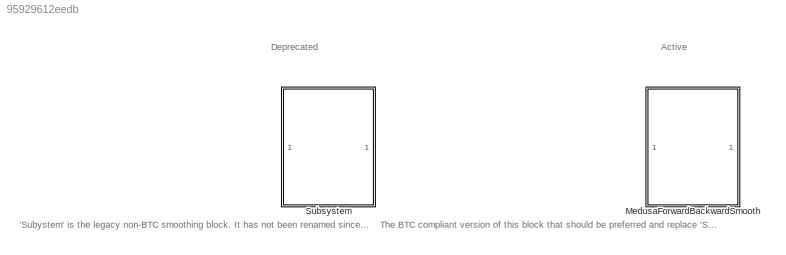
MODEL slx_95929612eedb
KIND library
CONFIG AbsTol = auto
CONFIG EnableMultiTasking = off
CONFIG FixedStep = auto
CONFIG MaxStep = auto
CONFIG MinStep = auto
CONFIG RelTol = 1e-3
CONFIG SampleTimeConstraint = Unconstrained
CONFIG SolverName = VariableStepAuto
CONFIG StartTime = 0.0
CONFIG StopTime = 10.0
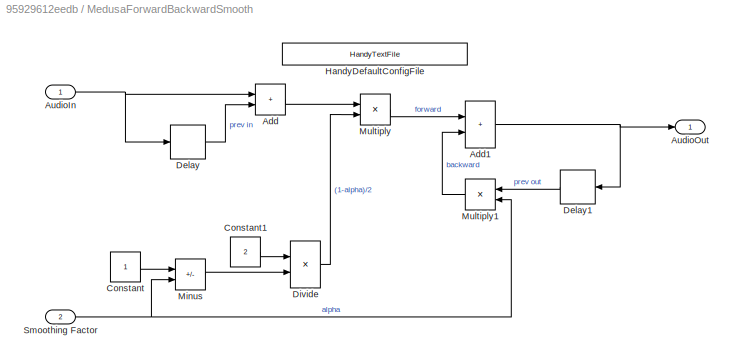
BLOCK [SubSystem] MedusaForwardBackwardSmooth
BLOCK [Sum] MedusaForwardBackwardSmooth/Add
  IconShape = rectangular
BLOCK [Sum] MedusaForwardBackwardSmooth/Add1
  IconShape = rectangular
BLOCK [Inport] MedusaForwardBackwardSmooth/AudioIn
BLOCK [Outport] MedusaForwardBackwardSmooth/AudioOut
  VectorParamsAs1DForOutWhenUnconnected = off
BLOCK [Constant] MedusaForwardBackwardSmooth/Constant
  OutDataTypeStr = single
BLOCK [Constant] MedusaForwardBackwardSmooth/Constant1
  OutDataTypeStr = single
  Value = 2
BLOCK [Delay] MedusaForwardBackwardSmooth/Delay
  DelayLength = Config.DelayLength
  InitialCondition = Config.InitialCondition
  InputPortMap = u0
  InputProcessing = Columns as channels (frame based)
BLOCK [Delay] MedusaForwardBackwardSmooth/Delay1
  DelayLength = Config.DelayLength
  InitialCondition = Config.InitialCondition
  InputPortMap = u0
  InputProcessing = Columns as channels (frame based)
BLOCK [Product] MedusaForwardBackwardSmooth/Divide
  Inputs = /*
BLOCK [Reference] MedusaForwardBackwardSmooth/HandyDefaultConfigFile  REF=HandyTextFile/HandyTextFile
  SourceBlock = HandyTextFile/HandyTextFile
  SourceProductName = Bose Talaria
  SourceType = Talaria Handy Text File
BLOCK [Sum] MedusaForwardBackwardSmooth/Minus
  IconShape = rectangular
  Inputs = +-
BLOCK [Product] MedusaForwardBackwardSmooth/Multiply
BLOCK [Product] MedusaForwardBackwardSmooth/Multiply1
  OutDataTypeStr = single
BLOCK [Inport] MedusaForwardBackwardSmooth/Smoothing Factor
  Port = 2
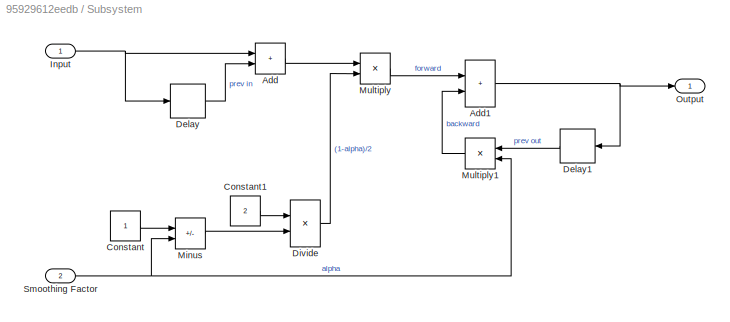
BLOCK [SubSystem] Subsystem
BLOCK [Sum] Subsystem/Add
  IconShape = rectangular
BLOCK [Sum] Subsystem/Add1
  IconShape = rectangular
BLOCK [Constant] Subsystem/Constant
  OutDataTypeStr = single
BLOCK [Constant] Subsystem/Constant1
  OutDataTypeStr = single
  Value = 2
BLOCK [Delay] Subsystem/Delay
  DelayLength = DelayLength
  InitialCondition = InitialCondition
  InputPortMap = u0
  InputProcessing = Columns as channels (frame based)
BLOCK [Delay] Subsystem/Delay1
  DelayLength = DelayLength
  InitialCondition = InitialCondition
  InputPortMap = u0
  InputProcessing = Columns as channels (frame based)
BLOCK [Product] Subsystem/Divide
  Inputs = /*
BLOCK [Inport] Subsystem/Input
BLOCK [Sum] Subsystem/Minus
  IconShape = rectangular
  Inputs = +-
BLOCK [Product] Subsystem/Multiply
BLOCK [Product] Subsystem/Multiply1
  OutDataTypeStr = single
BLOCK [Outport] Subsystem/Output
  VectorParamsAs1DForOutWhenUnconnected = off
BLOCK [Inport] Subsystem/Smoothing Factor
  Port = 2
ANNOTATION (root): 'Subystem' is the legacy non-BTC smoothing block. It has not been renamed since it is deprecated and should be removed once higher level blocks have been refactored to use the BTC version block.
ANNOTATION (root): Active
ANNOTATION (root): Deprecated
ANNOTATION (root): The BTC compliant version of this block that should be preferred and replace 'Subsystem' blocks.
NET MedusaForwardBackwardSmooth/Add1:1 -> MedusaForwardBackwardSmooth/AudioOut:1, MedusaForwardBackwardSmooth/Delay1:1
LINE MedusaForwardBackwardSmooth/Add:1 -> MedusaForwardBackwardSmooth/Multiply:1
NET MedusaForwardBackwardSmooth/AudioIn:1 -> MedusaForwardBackwardSmooth/Add:1, MedusaForwardBackwardSmooth/Delay:1
LINE MedusaForwardBackwardSmooth/Constant1:1 -> MedusaForwardBackwardSmooth/Divide:1
LINE MedusaForwardBackwardSmooth/Constant:1 -> MedusaForwardBackwardSmooth/Minus:1
LINE MedusaForwardBackwardSmooth/Delay1:1 -> MedusaForwardBackwardSmooth/Multiply1:1
LINE MedusaForwardBackwardSmooth/Delay:1 -> MedusaForwardBackwardSmooth/Add:2
LINE MedusaForwardBackwardSmooth/Divide:1 -> MedusaForwardBackwardSmooth/Multiply:2
LINE MedusaForwardBackwardSmooth/Minus:1 -> MedusaForwardBackwardSmooth/Divide:2
LINE MedusaForwardBackwardSmooth/Multiply1:1 -> MedusaForwardBackwardSmooth/Add1:2
LINE MedusaForwardBackwardSmooth/Multiply:1 -> MedusaForwardBackwardSmooth/Add1:1
NET MedusaForwardBackwardSmooth/Smoothing Factor:1 -> MedusaForwardBackwardSmooth/Minus:2, MedusaForwardBackwardSmooth/Multiply1:2
NET Subsystem/Add1:1 -> Subsystem/Delay1:1, Subsystem/Output:1
LINE Subsystem/Add:1 -> Subsystem/Multiply:1
LINE Subsystem/Constant1:1 -> Subsystem/Divide:1
LINE Subsystem/Constant:1 -> Subsystem/Minus:1
LINE Subsystem/Delay1:1 -> Subsystem/Multiply1:1
LINE Subsystem/Delay:1 -> Subsystem/Add:2
LINE Subsystem/Divide:1 -> Subsystem/Multiply:2
NET Subsystem/Input:1 -> Subsystem/Add:1, Subsystem/Delay:1
LINE Subsystem/Minus:1 -> Subsystem/Divide:2
LINE Subsystem/Multiply1:1 -> Subsystem/Add1:2
LINE Subsystem/Multiply:1 -> Subsystem/Add1:1
NET Subsystem/Smoothing Factor:1 -> Subsystem/Minus:2, Subsystem/Multiply1:2
note: NET lines group one-source signal fan-out (src -> all destinations, sorted); 1:1 wires keep LINE
